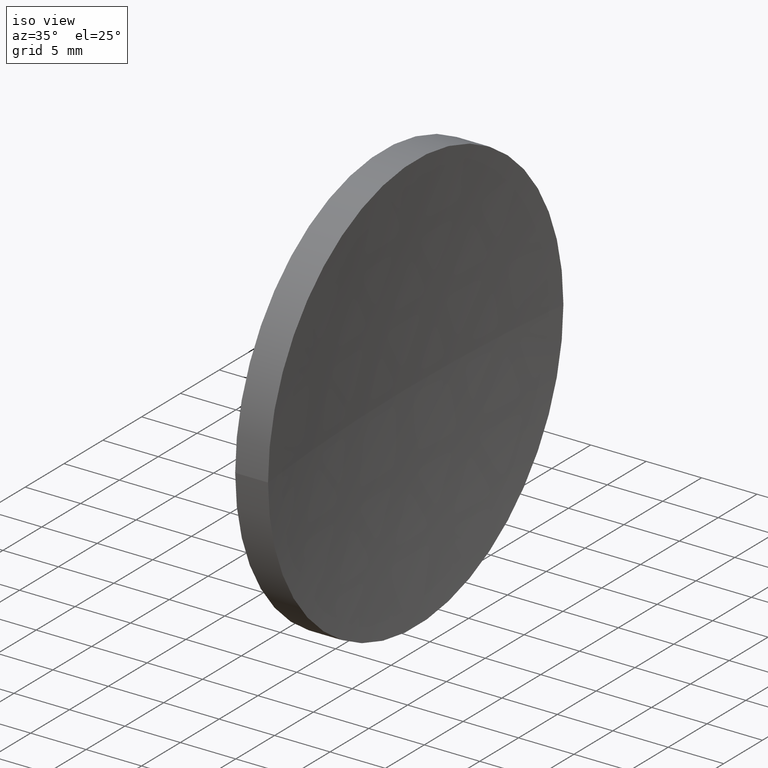
[diagram: clean part render]
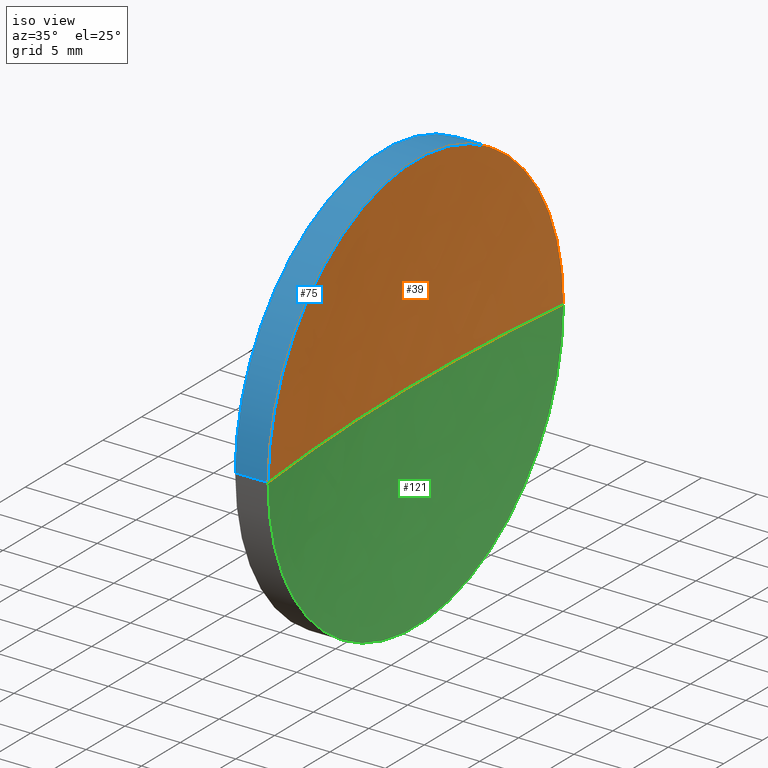
[diagram: same view with three faces highlighted in distinct colors, each labeled with its STEP entity id]
A machine part, iso view with three faces highlighted in distinct colors.
Their STEP definitions:

[orange] entity #39 — the highlighted spherical surface has radius 178 mm.
#5 = CIRCLE ( 'NONE', #56, 19.02499999999998800 ) ;
#7 = DIRECTION ( 'NONE',  ( 0.0000000000000000000, -0.0000000000000000000, 1.000000000000000000 ) ) ;
#8 = DIRECTION ( 'NONE',  ( -6.237208003512115800E-016, 1.000000000000000000, 0.0000000000000000000 ) ) ;
#13 = EDGE_CURVE ( 'NONE', #139, #180, #5, .T. ) ;
#14 = AXIS2_PLACEMENT_3D ( 'NONE', #33, #131, #157 ) ;
#18 = CIRCLE ( 'NONE', #142, 178.0000000000000000 ) ;
#21 = CARTESIAN_POINT ( 'NONE',  ( 127.5554213155558000, 65.21684047094015600, 0.0000000000000000000 ) ) ;
#25 = ORIENTED_EDGE ( 'NONE', *, *, #13, .F. ) ;
#33 = CARTESIAN_POINT ( 'NONE',  ( 305.5554213155558000, 65.21684047094026900, 0.0000000000000000000 ) ) ;
#39 = ADVANCED_FACE ( 'NONE', ( #129 ), #61, .F. ) ;
#45 = CARTESIAN_POINT ( 'NONE',  ( 128.5750569386001700, 84.24184047094037500, 0.0000000000000000000 ) ) ;
#56 = AXIS2_PLACEMENT_3D ( 'NONE', #113, #169, #128 ) ;
#61 = SPHERICAL_SURFACE ( 'NONE', #191, 178.0000000000000000 ) ;
#72 = EDGE_CURVE ( 'NONE', #180, #81, #18, .T. ) ;
#81 = VERTEX_POINT ( 'NONE', #21 ) ;
#86 = CARTESIAN_POINT ( 'NONE',  ( 305.5554213155558000, 65.21684047094026900, 0.0000000000000000000 ) ) ;
#89 = CARTESIAN_POINT ( 'NONE',  ( 305.5554213155558000, 65.21684047094026900, 0.0000000000000000000 ) ) ;
#90 = EDGE_CURVE ( 'NONE', #139, #81, #133, .T. ) ;
#93 = CARTESIAN_POINT ( 'NONE',  ( 128.5750569386001700, 46.19184047094012200, -2.329890535377843500E-015 ) ) ;
#101 = ORIENTED_EDGE ( 'NONE', *, *, #72, .F. ) ;
#111 = DIRECTION ( 'NONE',  ( 1.000000000000000000, 0.0000000000000000000, 0.0000000000000000000 ) ) ;
#113 = CARTESIAN_POINT ( 'NONE',  ( 128.5750569386001700, 65.21684047094034000, 0.0000000000000000000 ) ) ;
#128 = DIRECTION ( 'NONE',  ( 0.0000000000000000000, -1.000000000000000000, 0.0000000000000000000 ) ) ;
#129 = FACE_OUTER_BOUND ( 'NONE', #159, .T. ) ;
#131 = DIRECTION ( 'NONE',  ( -8.496118506040342700E-032, 1.224646799147353200E-016, -1.000000000000000000 ) ) ;
#133 = CIRCLE ( 'NONE', #14, 178.0000000000000000 ) ;
#139 = VERTEX_POINT ( 'NONE', #93 ) ;
#142 = AXIS2_PLACEMENT_3D ( 'NONE', #86, #7, #111 ) ;
#157 = DIRECTION ( 'NONE',  ( 0.0000000000000000000, 1.000000000000000000, 1.224646799147353000E-016 ) ) ;
#159 = EDGE_LOOP ( 'NONE', ( #25, #192, #101 ) ) ;
#168 = DIRECTION ( 'NONE',  ( 0.0000000000000000000, 0.0000000000000000000, -1.000000000000000000 ) ) ;
#169 = DIRECTION ( 'NONE',  ( -1.000000000000000000, -6.937607244762875000E-016, -0.0000000000000000000 ) ) ;
#180 = VERTEX_POINT ( 'NONE', #45 ) ;
#191 = AXIS2_PLACEMENT_3D ( 'NONE', #89, #168, #8 ) ;
#192 = ORIENTED_EDGE ( 'NONE', *, *, #90, .T. ) ;

[blue] entity #75 — the highlighted cylindrical surface (partial cylindrical patch) has radius 19.025 mm, axis along (-1, -0, -0).
#5 = CIRCLE ( 'NONE', #56, 19.02499999999998800 ) ;
#6 = AXIS2_PLACEMENT_3D ( 'NONE', #130, #48, #153 ) ;
#9 = CARTESIAN_POINT ( 'NONE',  ( 125.6133060406054900, 46.19184047094029200, -2.329890535377837100E-015 ) ) ;
#11 = ORIENTED_EDGE ( 'NONE', *, *, #116, .F. ) ;
#12 = DIRECTION ( 'NONE',  ( -1.000000000000000000, -6.937607244762875000E-016, -0.0000000000000000000 ) ) ;
#13 = EDGE_CURVE ( 'NONE', #139, #180, #5, .T. ) ;
#26 = EDGE_LOOP ( 'NONE', ( #84, #67, #115, #11 ) ) ;
#31 = VERTEX_POINT ( 'NONE', #87 ) ;
#32 = DIRECTION ( 'NONE',  ( 0.0000000000000000000, -1.000000000000000000, 0.0000000000000000000 ) ) ;
#42 = DIRECTION ( 'NONE',  ( -1.000000000000000000, -6.937607244762875000E-016, -0.0000000000000000000 ) ) ;
#45 = CARTESIAN_POINT ( 'NONE',  ( 128.5750569386001700, 84.24184047094037500, 0.0000000000000000000 ) ) ;
#48 = DIRECTION ( 'NONE',  ( -1.000000000000000000, -6.937607244762875000E-016, -0.0000000000000000000 ) ) ;
#53 = AXIS2_PLACEMENT_3D ( 'NONE', #85, #185, #32 ) ;
#54 = CARTESIAN_POINT ( 'NONE',  ( 115.9444912979631800, 46.19184047094034200, 0.0000000000000000000 ) ) ;
#56 = AXIS2_PLACEMENT_3D ( 'NONE', #113, #169, #128 ) ;
#57 = VECTOR ( 'NONE', #12, 1000.000000000000000 ) ;
#62 = CARTESIAN_POINT ( 'NONE',  ( 115.9444912979631500, 84.24184047094031800, 2.329890535377837500E-015 ) ) ;
#64 = CIRCLE ( 'NONE', #53, 19.02499999999998100 ) ;
#67 = ORIENTED_EDGE ( 'NONE', *, *, #176, .T. ) ;
#74 = EDGE_CURVE ( 'NONE', #136, #31, #64, .T. ) ;
#75 = ADVANCED_FACE ( 'NONE', ( #109 ), #170, .T. ) ;
#83 = LINE ( 'NONE', #62, #112 ) ;
#84 = ORIENTED_EDGE ( 'NONE', *, *, #13, .T. ) ;
#85 = CARTESIAN_POINT ( 'NONE',  ( 125.6133060406054900, 65.21684047094032600, 0.0000000000000000000 ) ) ;
#87 = CARTESIAN_POINT ( 'NONE',  ( 125.6133060406054900, 84.24184047094030300, 0.0000000000000000000 ) ) ;
#93 = CARTESIAN_POINT ( 'NONE',  ( 128.5750569386001700, 46.19184047094012200, -2.329890535377843500E-015 ) ) ;
#109 = FACE_OUTER_BOUND ( 'NONE', #26, .T. ) ;
#112 = VECTOR ( 'NONE', #42, 1000.000000000000000 ) ;
#113 = CARTESIAN_POINT ( 'NONE',  ( 128.5750569386001700, 65.21684047094034000, 0.0000000000000000000 ) ) ;
#115 = ORIENTED_EDGE ( 'NONE', *, *, #74, .F. ) ;
#116 = EDGE_CURVE ( 'NONE', #139, #136, #135, .T. ) ;
#128 = DIRECTION ( 'NONE',  ( 0.0000000000000000000, -1.000000000000000000, 0.0000000000000000000 ) ) ;
#130 = CARTESIAN_POINT ( 'NONE',  ( 115.9444912979631700, 65.21684047094032600, 0.0000000000000000000 ) ) ;
#135 = LINE ( 'NONE', #54, #57 ) ;
#136 = VERTEX_POINT ( 'NONE', #9 ) ;
#139 = VERTEX_POINT ( 'NONE', #93 ) ;
#153 = DIRECTION ( 'NONE',  ( 7.294500818824949000E-016, -1.000000000000000000, 0.0000000000000000000 ) ) ;
#169 = DIRECTION ( 'NONE',  ( -1.000000000000000000, -6.937607244762875000E-016, -0.0000000000000000000 ) ) ;
#170 = CYLINDRICAL_SURFACE ( 'NONE', #6, 19.02499999999998800 ) ;
#176 = EDGE_CURVE ( 'NONE', #180, #31, #83, .T. ) ;
#180 = VERTEX_POINT ( 'NONE', #45 ) ;
#185 = DIRECTION ( 'NONE',  ( -1.000000000000000000, -6.937607244762875000E-016, -0.0000000000000000000 ) ) ;

[green] entity #121 — the highlighted spherical surface has radius 178 mm.
#7 = DIRECTION ( 'NONE',  ( 0.0000000000000000000, -0.0000000000000000000, 1.000000000000000000 ) ) ;
#14 = AXIS2_PLACEMENT_3D ( 'NONE', #33, #131, #157 ) ;
#16 = AXIS2_PLACEMENT_3D ( 'NONE', #117, #190, #36 ) ;
#18 = CIRCLE ( 'NONE', #142, 178.0000000000000000 ) ;
#19 = AXIS2_PLACEMENT_3D ( 'NONE', #22, #155, #50 ) ;
#21 = CARTESIAN_POINT ( 'NONE',  ( 127.5554213155558000, 65.21684047094015600, 0.0000000000000000000 ) ) ;
#22 = CARTESIAN_POINT ( 'NONE',  ( 128.5750569386001700, 65.21684047094034000, 0.0000000000000000000 ) ) ;
#33 = CARTESIAN_POINT ( 'NONE',  ( 305.5554213155558000, 65.21684047094026900, 0.0000000000000000000 ) ) ;
#36 = DIRECTION ( 'NONE',  ( -6.237208003512115800E-016, 1.000000000000000000, 0.0000000000000000000 ) ) ;
#38 = FACE_OUTER_BOUND ( 'NONE', #41, .T. ) ;
#40 = ORIENTED_EDGE ( 'NONE', *, *, #72, .T. ) ;
#41 = EDGE_LOOP ( 'NONE', ( #183, #151, #40 ) ) ;
#43 = EDGE_CURVE ( 'NONE', #180, #139, #104, .T. ) ;
#45 = CARTESIAN_POINT ( 'NONE',  ( 128.5750569386001700, 84.24184047094037500, 0.0000000000000000000 ) ) ;
#50 = DIRECTION ( 'NONE',  ( 0.0000000000000000000, -1.000000000000000000, 0.0000000000000000000 ) ) ;
#72 = EDGE_CURVE ( 'NONE', #180, #81, #18, .T. ) ;
#81 = VERTEX_POINT ( 'NONE', #21 ) ;
#86 = CARTESIAN_POINT ( 'NONE',  ( 305.5554213155558000, 65.21684047094026900, 0.0000000000000000000 ) ) ;
#90 = EDGE_CURVE ( 'NONE', #139, #81, #133, .T. ) ;
#93 = CARTESIAN_POINT ( 'NONE',  ( 128.5750569386001700, 46.19184047094012200, -2.329890535377843500E-015 ) ) ;
#104 = CIRCLE ( 'NONE', #19, 19.02499999999998800 ) ;
#111 = DIRECTION ( 'NONE',  ( 1.000000000000000000, 0.0000000000000000000, 0.0000000000000000000 ) ) ;
#117 = CARTESIAN_POINT ( 'NONE',  ( 305.5554213155558000, 65.21684047094026900, 0.0000000000000000000 ) ) ;
#119 = SPHERICAL_SURFACE ( 'NONE', #16, 178.0000000000000000 ) ;
#121 = ADVANCED_FACE ( 'NONE', ( #38 ), #119, .F. ) ;
#131 = DIRECTION ( 'NONE',  ( -8.496118506040342700E-032, 1.224646799147353200E-016, -1.000000000000000000 ) ) ;
#133 = CIRCLE ( 'NONE', #14, 178.0000000000000000 ) ;
#139 = VERTEX_POINT ( 'NONE', #93 ) ;
#142 = AXIS2_PLACEMENT_3D ( 'NONE', #86, #7, #111 ) ;
#151 = ORIENTED_EDGE ( 'NONE', *, *, #43, .F. ) ;
#155 = DIRECTION ( 'NONE',  ( -1.000000000000000000, -6.937607244762875000E-016, -0.0000000000000000000 ) ) ;
#157 = DIRECTION ( 'NONE',  ( 0.0000000000000000000, 1.000000000000000000, 1.224646799147353000E-016 ) ) ;
#180 = VERTEX_POINT ( 'NONE', #45 ) ;
#183 = ORIENTED_EDGE ( 'NONE', *, *, #90, .F. ) ;
#190 = DIRECTION ( 'NONE',  ( 0.0000000000000000000, 0.0000000000000000000, -1.000000000000000000 ) ) ;